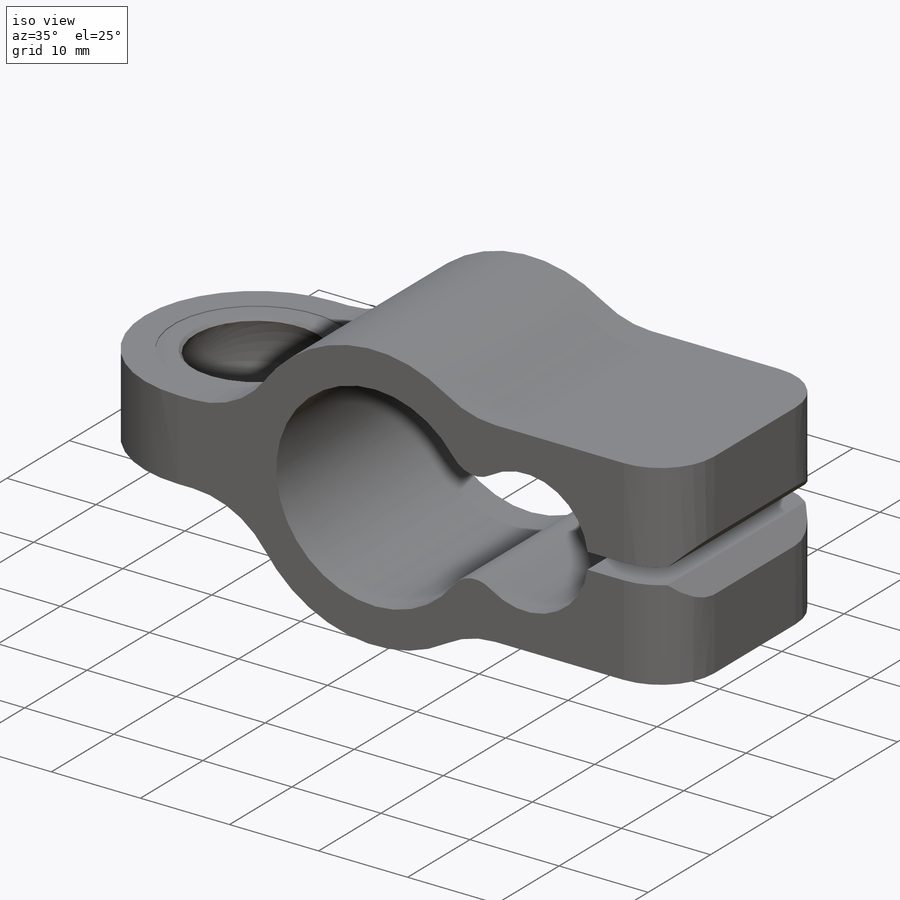
[diagram: iso view]
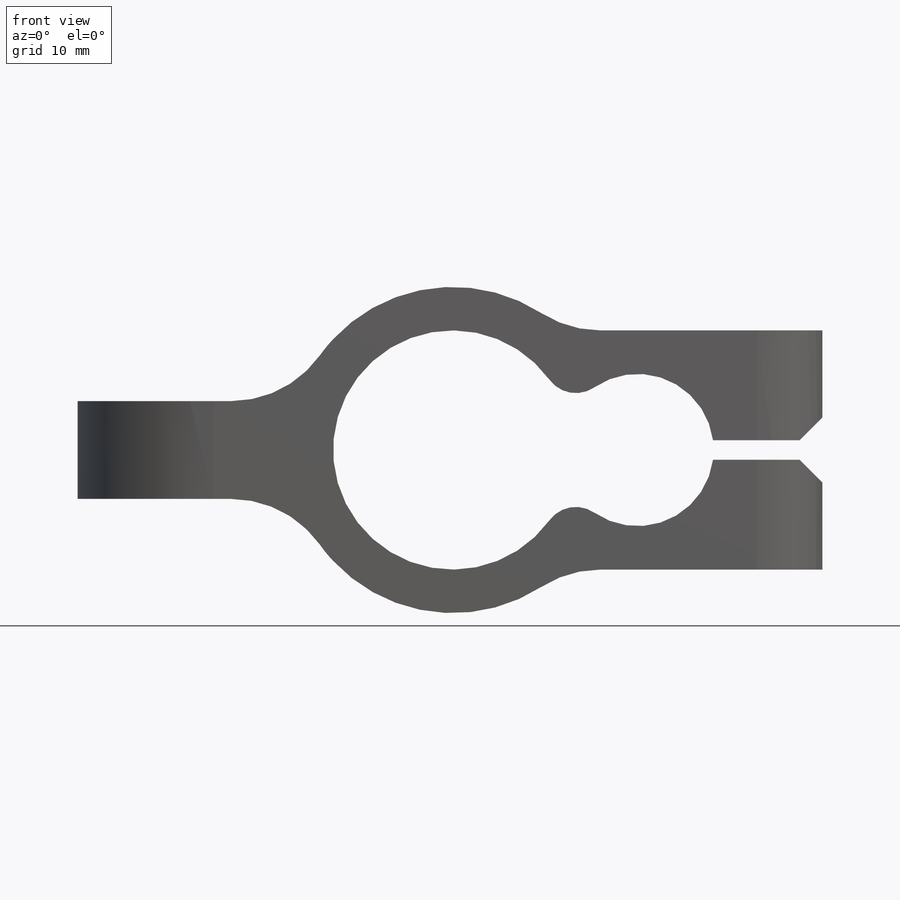
[diagram: front view]
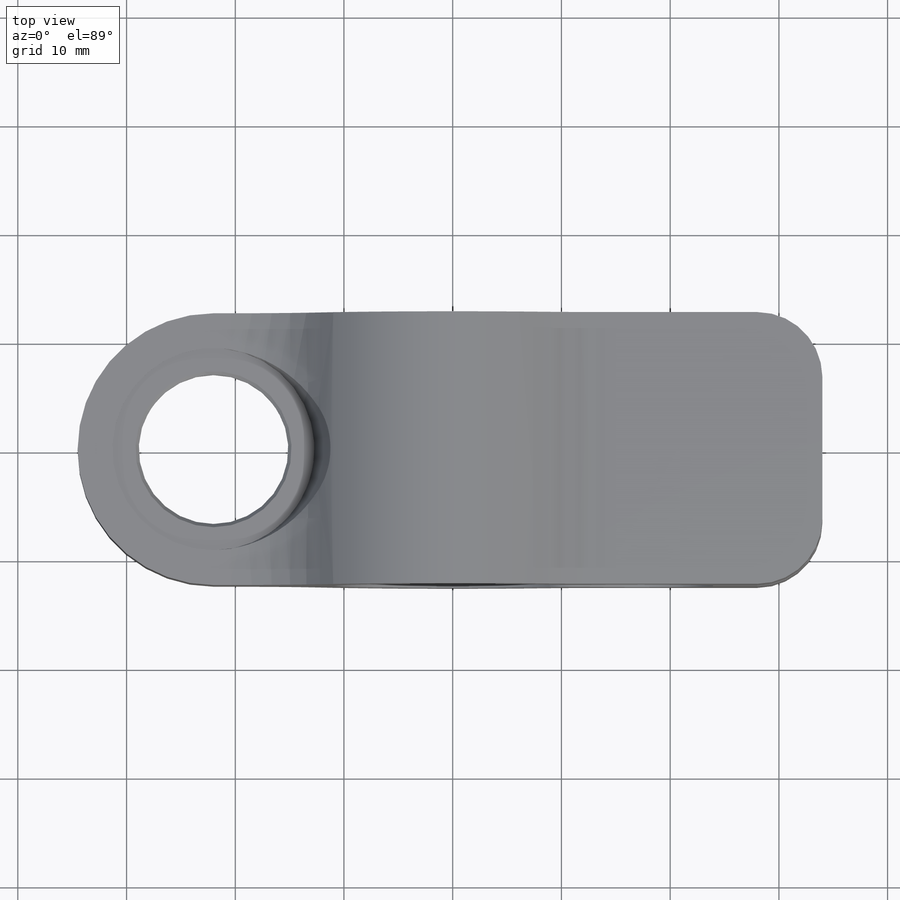
[diagram: top view]
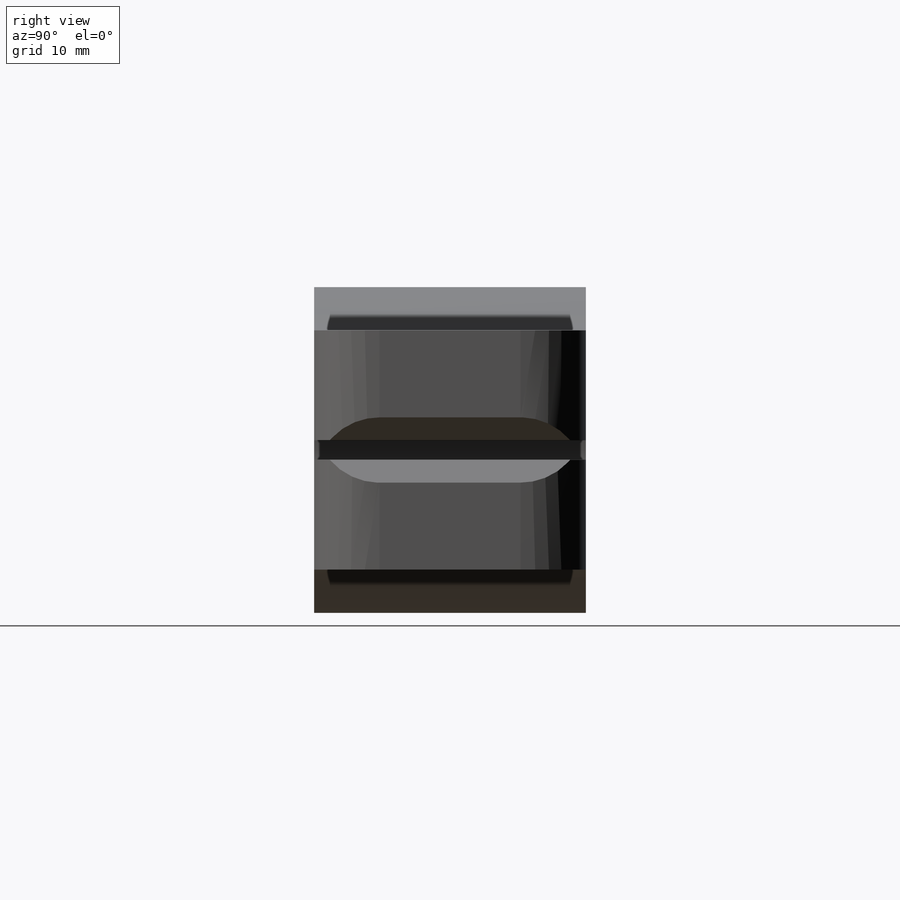
[diagram: right view]
SOLIDWORKS PART (.sldprt)
format: sldprt  version: not decoded by parser v0  size: 355,328 bytes
history: native  units: mm
features: sketch x4, fillet x3, cut_extrude x2, material x1, extrude x1, cut_revolve x1, chamfer x1, mirror x1 (+11 scaffold rows collapsed)
feature tree (25):
  scaffold x11  (default folders/planes/origin — collapsed)
  material  "6063-T6"
  sketch  "Sketch1"  dims[c1.D1=22.0mm c1.D2=30.0mm c1.D3=14.0mm c1.D4=30.0mm c2.D1=25.0mm c2.D2=10.0mm c2.D3=28.0mm c2.D4=16.0mm c2.D5=25.0mm c2.D6=9.0mm c2.D7=2.0mm c3.D4=17.0mm c3.D5=1.8mm c3.D6=22.0mm c3.D7=9.0mm c3.D8=70.0mm c3.D9=34.0mm c3.D10=~4.253785mm c4.D10=135.0deg c4.D11=6.0mm]
  extrude  "Extrude1"  Depth=25mm
  sketch  "Sketch4"  dims[D1=22.0mm]
  cut_extrude  "Extrude3"  Depth=10mm
  sketch  "Sketch2"  dims[D1=16.0mm D2=12.0mm]
  cut_revolve  "Cut-Revolve1"  Angle=360deg
  fillet  "Fillet1"  Radius=10mm
  sketch  "Sketch3"  dims[D1=18.6mm]
  cut_extrude  "Extrude2"  Depth=0.1mm
  chamfer  "Chamfer1"  Distance=0.5mm Angle=45deg
  mirror  "Mirror1"
  fillet  "Fillet2"  Radius=3mm
  fillet  "Fillet3"  Radius=6mm
decode coverage: 12 of 13 modeling features carry decoded parameters
note: ~ marks probable driven/reference dimensions
note: suppression state not decoded; provenance and decode notes live in map.json
